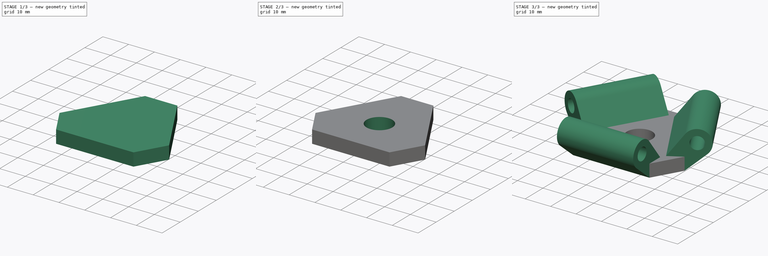
[diagram: build sequence overview — one tinted view per stage of 3, left to right]
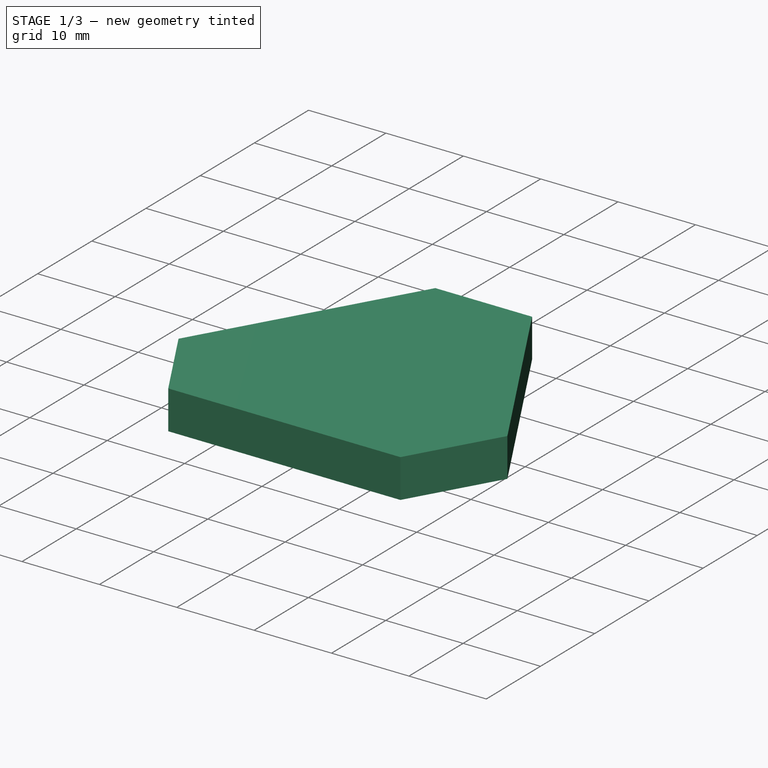
[diagram: stage 1 of 3 — iso view after this stage's code; geometry added in this stage tinted green]
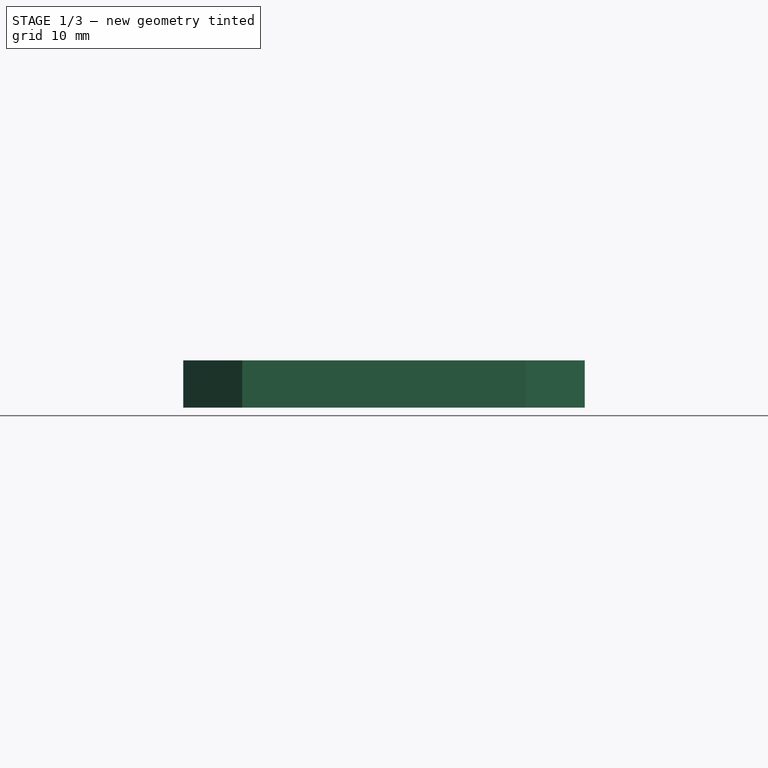
[diagram: stage 1 of 3 — front view after this stage's code; geometry added in this stage tinted green]
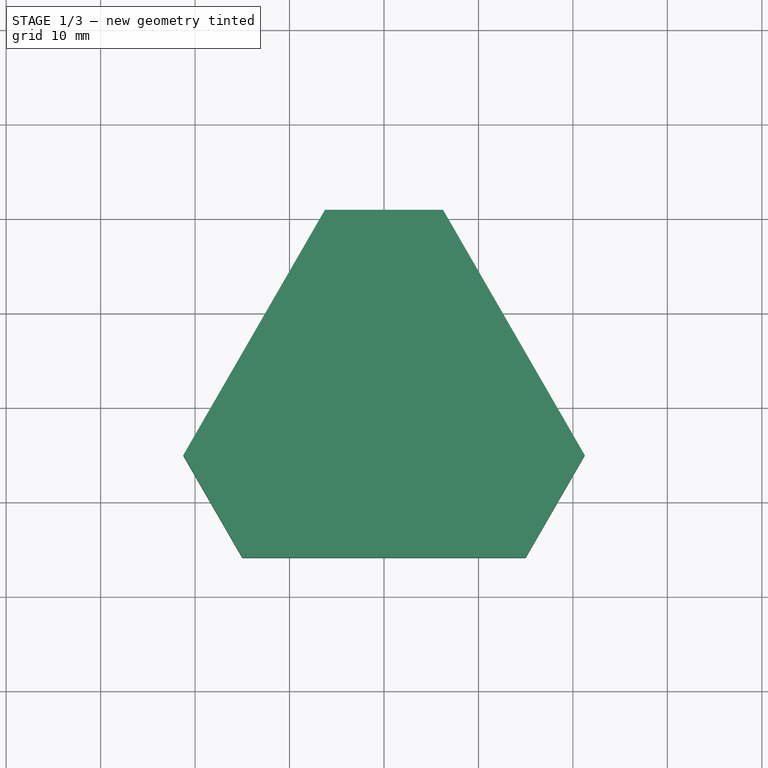
[diagram: stage 1 of 3 — top view after this stage's code; geometry added in this stage tinted green]
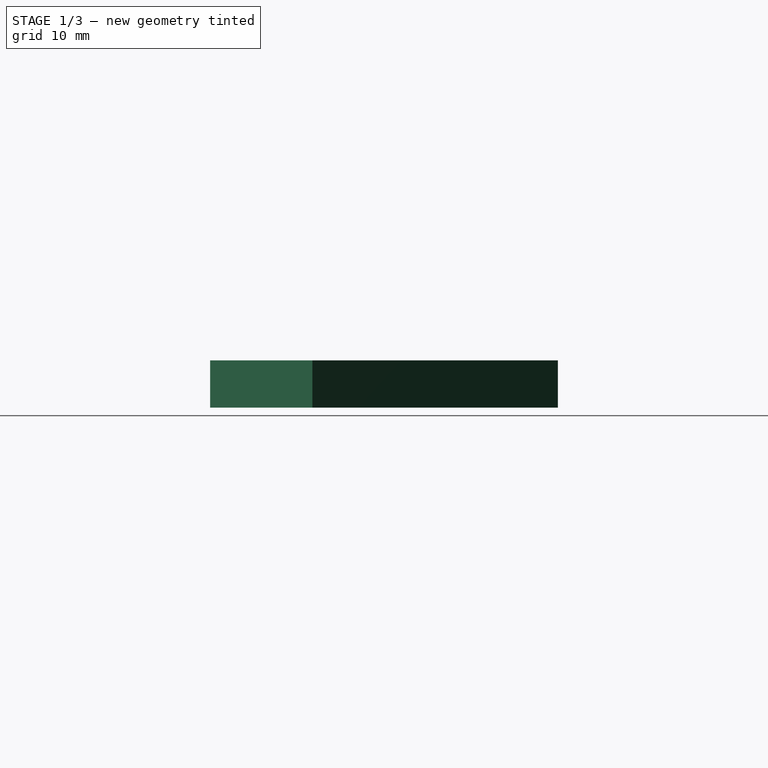
[diagram: stage 1 of 3 — right view after this stage's code; geometry added in this stage tinted green]
FCSTD DOCUMENT  (FreeCAD 0.19R23742 (Git))
Label: base_plate_endeffector
License: All rights reserved
LicenseURL: http://en.wikipedia.org/wiki/All_rights_reserved
objects: Sketcher::SketchObject×4, PartDesign::Pad×2, PartDesign::Pocket×2, PartDesign::PolarPattern×1, PartDesign::Body×1
note: 14 computed .brp shape members not serialized (recipe doc carries the construction recipe); baked Part::Feature solids carry a one-line shape summary decoded from their .brp

FEATURE [Sketcher::SketchObject] Sketch
  FullyConstrained = true
  MapMode = 5
  Support = -> [XY_Plane]
  sketch-geometry (4):
    g0: LineSegment StartX=0 StartY=31.7543 StartZ=0 EndX=-27.5 EndY=-15.8771 EndZ=0
    g1: LineSegment StartX=-27.5 StartY=-15.8771 StartZ=0 EndX=27.5 EndY=-15.8771 EndZ=0
    g2: LineSegment StartX=27.5 StartY=-15.8771 StartZ=0 EndX=0 EndY=31.7543 EndZ=0
    g3: Circle CenterX=0 CenterY=0 CenterZ=0 NormalX=0 NormalY=0 NormalZ=1 AngleXU=0 Radius=31.7543
  constraints (11):
    c: Coincident(g0,g1)
    c: Coincident(g1,g2)
    c: Coincident(g2,g0)
    c: Equal(g0,g1)
    c: Equal(g0,g2)
    c: PointOnObject(g0,g3)
    c: PointOnObject(g1,g3)
    c: PointOnObject(g2,g3)
    c: Coincident(g3,g-1)
    c: PointOnObject(g2,g-2)
    c: Distance(g1) = 55
FEATURE [PartDesign::Pad] Pad
  Direction = (1,1,1)
  Length = 5
  Length2 = 100
  Profile = -> Sketch
  Type = 0
FEATURE [Sketcher::SketchObject] Sketch001
  ExternalGeometry = -> [Pad]
  FullyConstrained = true
  MapMode = 5
  Placement = pos=(0,0,5) rot=(0,0,1;0rad)
  Support = -> [Pad]
  sketch-geometry (9):
    g0: LineSegment StartX=-21.25 StartY=-5.05181 StartZ=0 EndX=-15 EndY=-15.8771 EndZ=0
    g1: LineSegment StartX=-27.5 StartY=-15.8771 StartZ=0 EndX=-21.25 EndY=-5.05181 EndZ=0
    g2: LineSegment StartX=-15 StartY=-15.8771 StartZ=0 EndX=-27.5 EndY=-15.8771 EndZ=0
    g3: LineSegment StartX=27.5 StartY=-15.8771 StartZ=0 EndX=21.25 EndY=-5.05181 EndZ=0
    g4: LineSegment StartX=21.25 StartY=-5.05181 StartZ=0 EndX=15 EndY=-15.8771 EndZ=0
    g5: LineSegment StartX=15 StartY=-15.8771 StartZ=0 EndX=27.5 EndY=-15.8771 EndZ=0
    g6: LineSegment StartX=0 StartY=31.7543 StartZ=0 EndX=6.25 EndY=20.9289 EndZ=0
    g7: LineSegment StartX=6.25 StartY=20.9289 StartZ=0 EndX=-6.25 EndY=20.9289 EndZ=0
    g8: LineSegment StartX=-6.25 StartY=20.9289 StartZ=0 EndX=0 EndY=31.7543 EndZ=0
  constraints (24):
    c: PointOnObject(g0,g-4)
    c: PointOnObject(g0,g-3)
    c: Coincident(g1,g-4)
    c: Coincident(g1,g0)
    c: Coincident(g2,g0)
    c: Coincident(g2,g1)
    c: Coincident(g3,g-5)
    c: PointOnObject(g3,g-5)
    c: Coincident(g4,g3)
    c: PointOnObject(g4,g-3)
    c: Coincident(g5,g4)
    c: Coincident(g5,g3)
    c: Coincident(g6,g-5)
    c: PointOnObject(g6,g-5)
    c: Coincident(g7,g6)
    c: PointOnObject(g7,g-4)
    c: Horizontal(g7)
    c: Coincident(g8,g7)
    c: Coincident(g8,g6)
    c: Equal(g6,g3)
    c: Equal(g3,g5)
    c: Equal(g5,g2)
    c: Equal(g2,g1)
    c: DistanceX(g0,g4) = 30
FEATURE [PartDesign::Pocket] Pocket
  BaseFeature = -> Pad
  Length = 5
  Length2 = 100
  Profile = -> Sketch001
  Type = 1
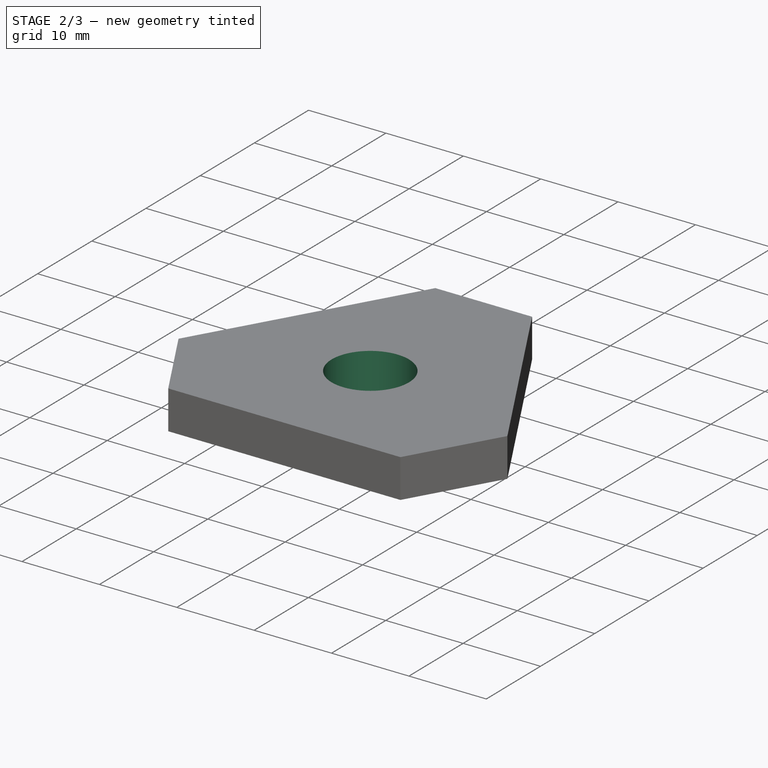
[diagram: stage 2 of 3 — iso view after this stage's code; geometry added in this stage tinted green]
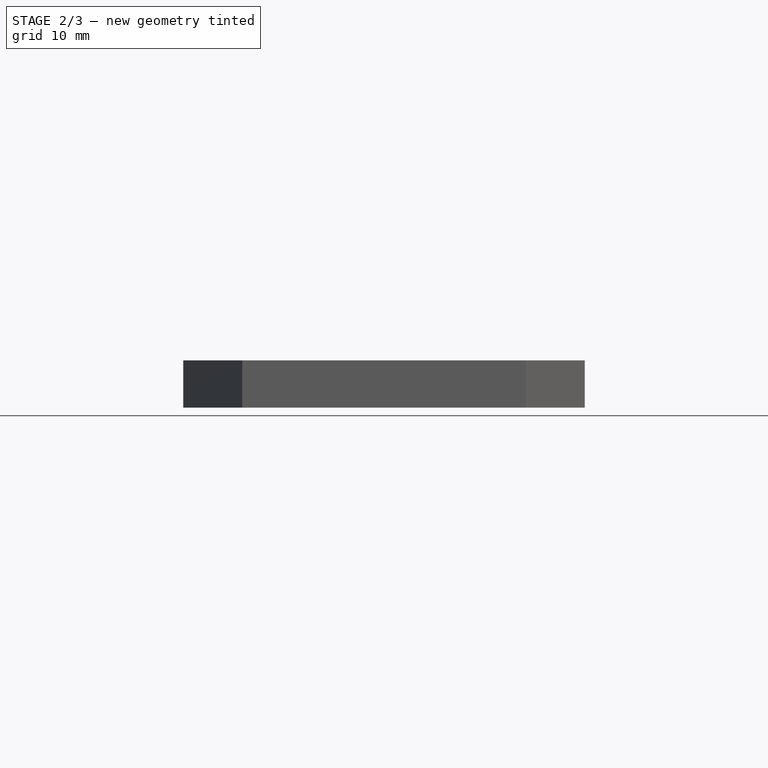
[diagram: stage 2 of 3 — front view after this stage's code; geometry added in this stage tinted green]
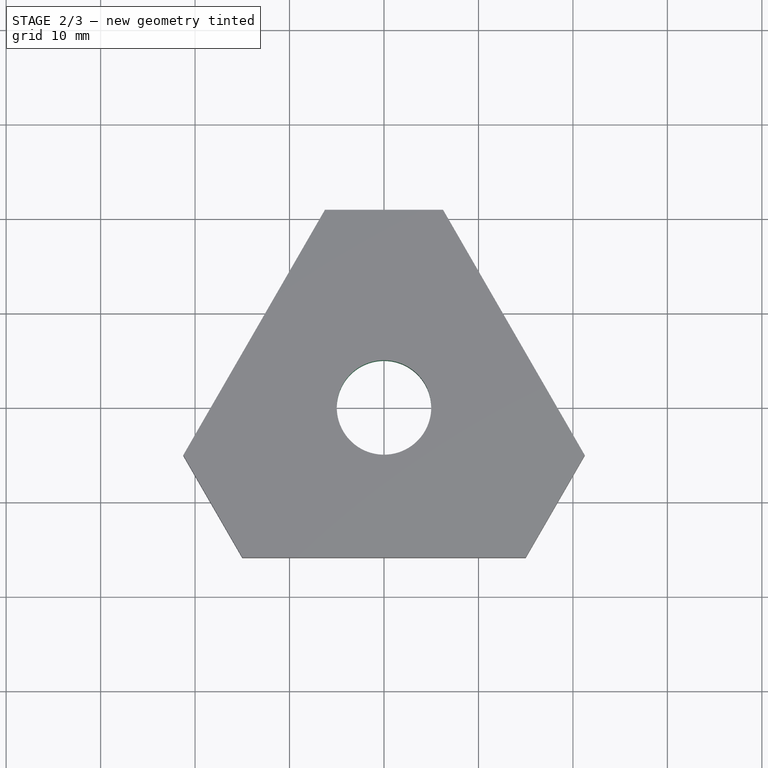
[diagram: stage 2 of 3 — top view after this stage's code; geometry added in this stage tinted green]
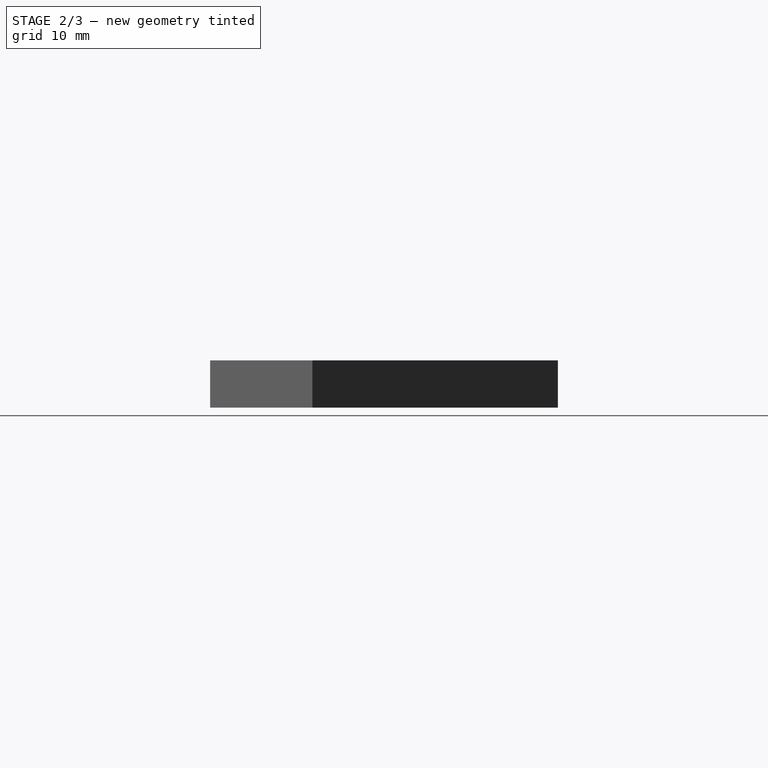
[diagram: stage 2 of 3 — right view after this stage's code; geometry added in this stage tinted green]
FEATURE [Sketcher::SketchObject] Sketch002
  FullyConstrained = true
  MapMode = 5
  Placement = pos=(0,0,5) rot=(0,0,1;0rad)
  Support = -> [Pocket]
  sketch-geometry (1):
    g0: Circle CenterX=0 CenterY=0 CenterZ=0 NormalX=0 NormalY=0 NormalZ=1 AngleXU=0 Radius=5
  constraints (2):
    c: Coincident(g0,g-1)
    c: Radius(g0) = 5
FEATURE [PartDesign::Pocket] Pocket001
  BaseFeature = -> Pocket
  Length = 5
  Length2 = 100
  Profile = -> Sketch002
  Type = 0
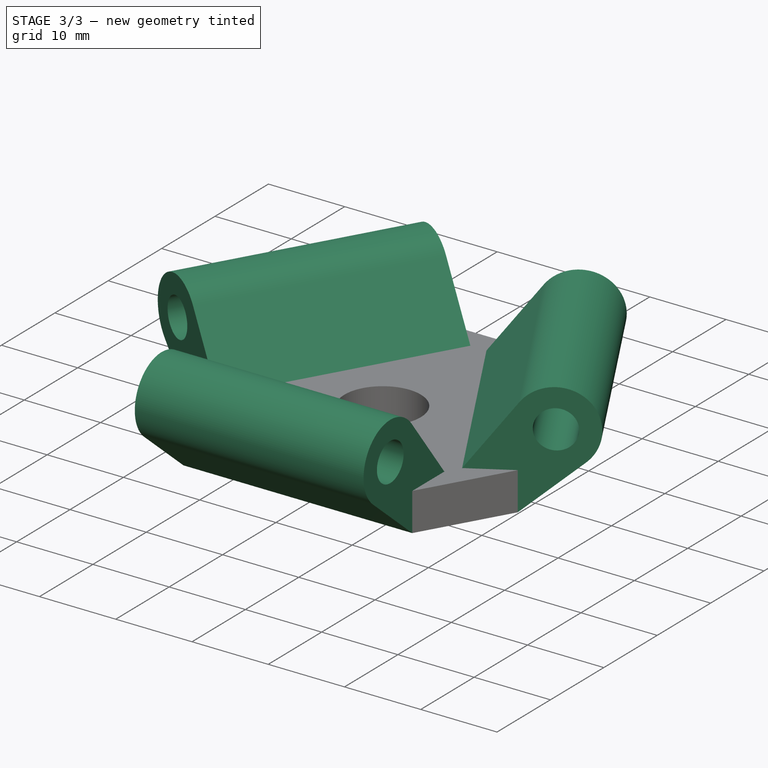
[diagram: stage 3 of 3 — iso view after this stage's code; geometry added in this stage tinted green]
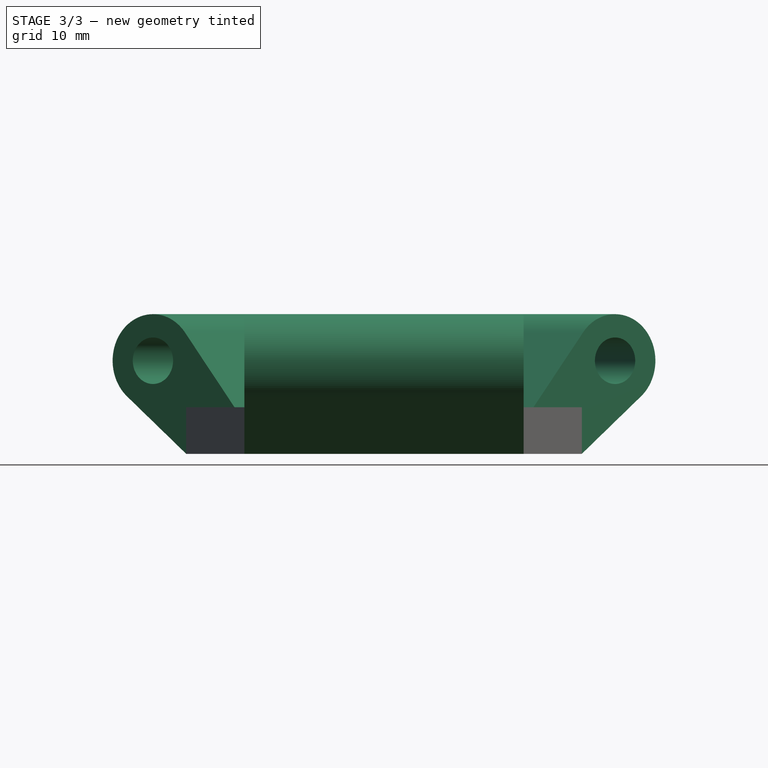
[diagram: stage 3 of 3 — front view after this stage's code; geometry added in this stage tinted green]
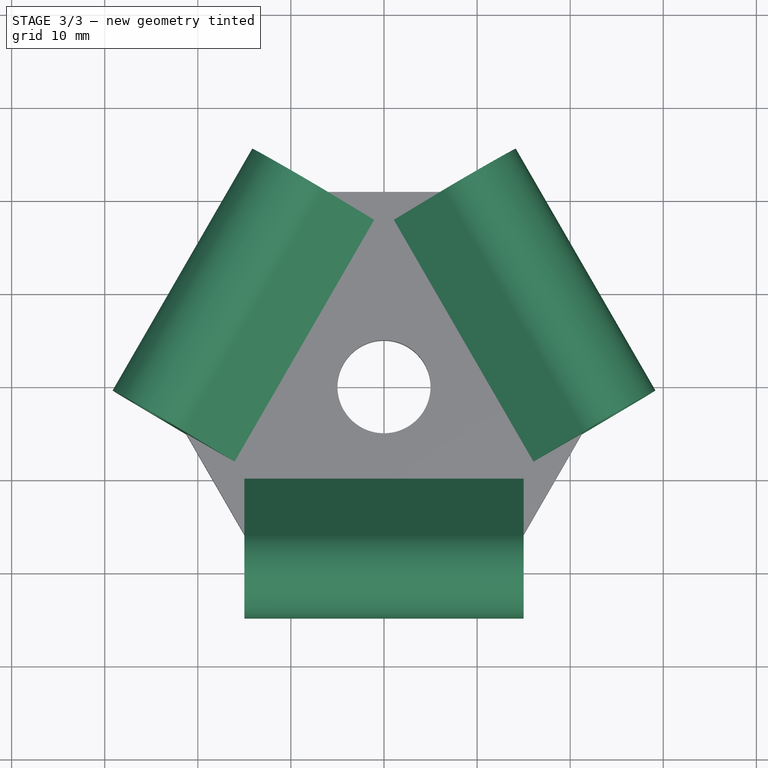
[diagram: stage 3 of 3 — top view after this stage's code; geometry added in this stage tinted green]
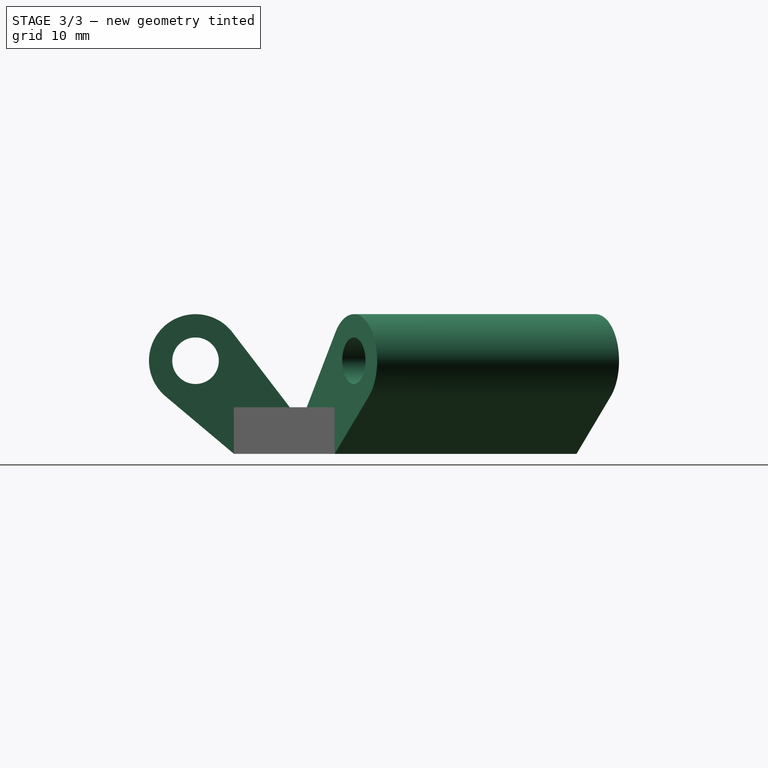
[diagram: stage 3 of 3 — right view after this stage's code; geometry added in this stage tinted green]
FEATURE [Sketcher::SketchObject] Sketch003
  ExternalGeometry = -> [Pocket001]
  FullyConstrained = true
  MapMode = 5
  Placement = pos=(0,0,0) rot=(0.57735,0.57735,0.57735;2.0944rad)
  Support = -> [YZ_Plane]
  sketch-geometry (6):
    g0: Circle CenterX=-20 CenterY=10 CenterZ=0 NormalX=0 NormalY=0 NormalZ=1 AngleXU=0 Radius=2.5
    g1: ArcOfCircle CenterX=-20 CenterY=10 CenterZ=0 NormalX=0 NormalY=0 NormalZ=1 AngleXU=0 Radius=5 StartAngle=0.653235 EndAngle=4.01318
    g2: LineSegment StartX=-15.8771 StartY=-8.9e-15 StartZ=0 EndX=-23.2181 EndY=6.17324 EndZ=0
    g3: LineSegment StartX=-16.0294 StartY=13.0388 StartZ=0 EndX=-9.87713 EndY=5 EndZ=0
    g4: LineSegment StartX=-9.87713 StartY=5 StartZ=0 EndX=-15.8771 EndY=5 EndZ=0
    g5: LineSegment StartX=-15.8771 StartY=5 StartZ=0 EndX=-15.8771 EndY=-8.9e-15 EndZ=0
  constraints (14):
    c: Coincident(g1,g0)
    c: Radius(g0) = 2.5
    c: Radius(g1) = 5
    c: DistanceX(g0,g-1) = 20
    c: DistanceY(g-1,g0) = 10
    c: Coincident(g2,g-3)
    c: Horizontal(g-3,g3)
    c: Coincident(g4,g3)
    c: Coincident(g4,g-3)
    c: Coincident(g5,g4)
    c: Coincident(g5,g2)
    c: DistanceX(g4,g3) = 6
    c: Tangent(g1,g3) = 1.5708
    c: Tangent(g1,g2) = 1.5708
FEATURE [PartDesign::Pad] Pad001
  BaseFeature = -> Pocket001
  Direction = (1,1,1)
  Length = 30
  Length2 = 100
  Midplane = true
  Profile = -> Sketch003
  Type = 0
FEATURE [PartDesign::PolarPattern] PolarPattern
  Angle = 360
  Axis = -> Z_Axis
  BaseFeature = -> Pad001
  Occurrences = 3
  Originals = -> [Pad001]
FEATURE [PartDesign::Body] Body
  Group = -> [Sketch,Pad,Sketch001,Pocket,Sketch002,Pocket001,Sketch003,Pad001,PolarPattern]
  Origin = -> Origin
  Tip = -> PolarPattern
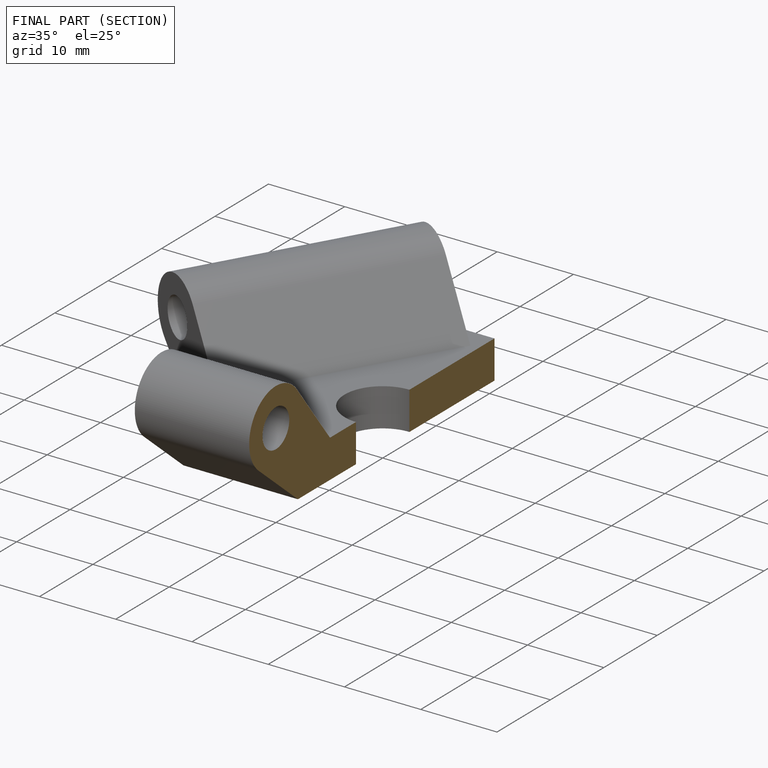
[diagram: finished part — half-section view (interior)]
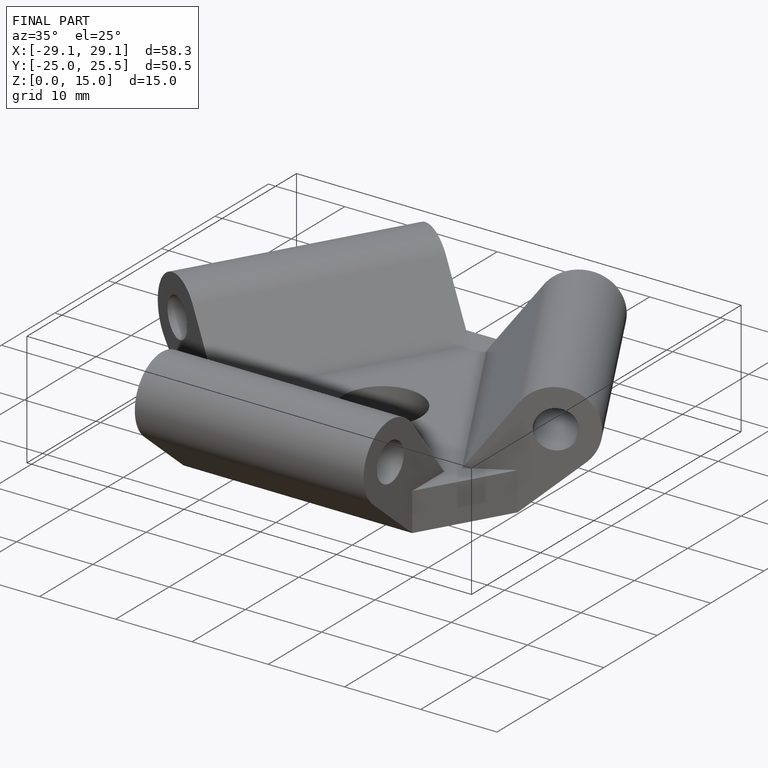
[diagram: finished part — iso view with bounding-box wireframe]
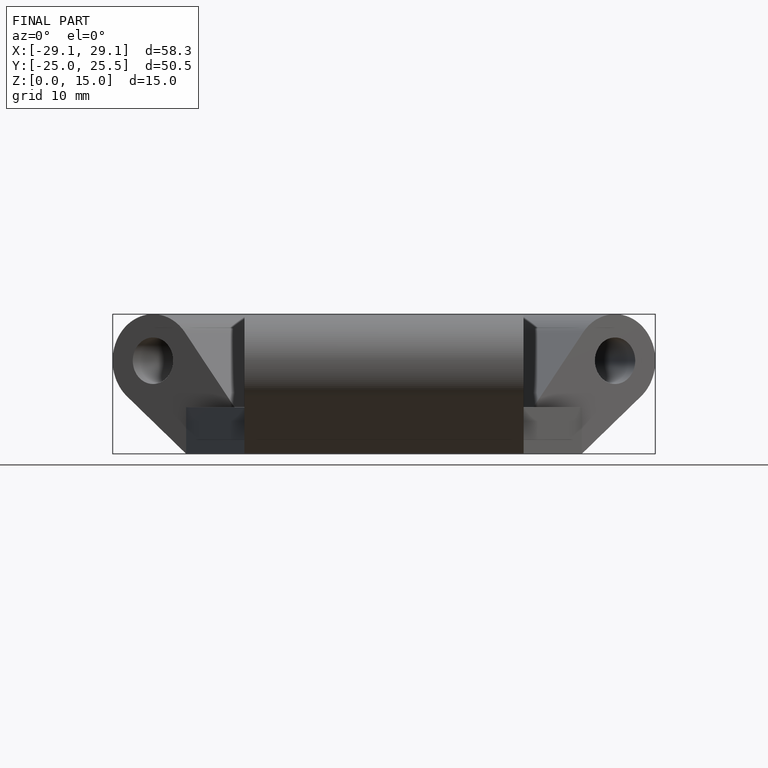
[diagram: finished part — front view with bounding-box wireframe]
